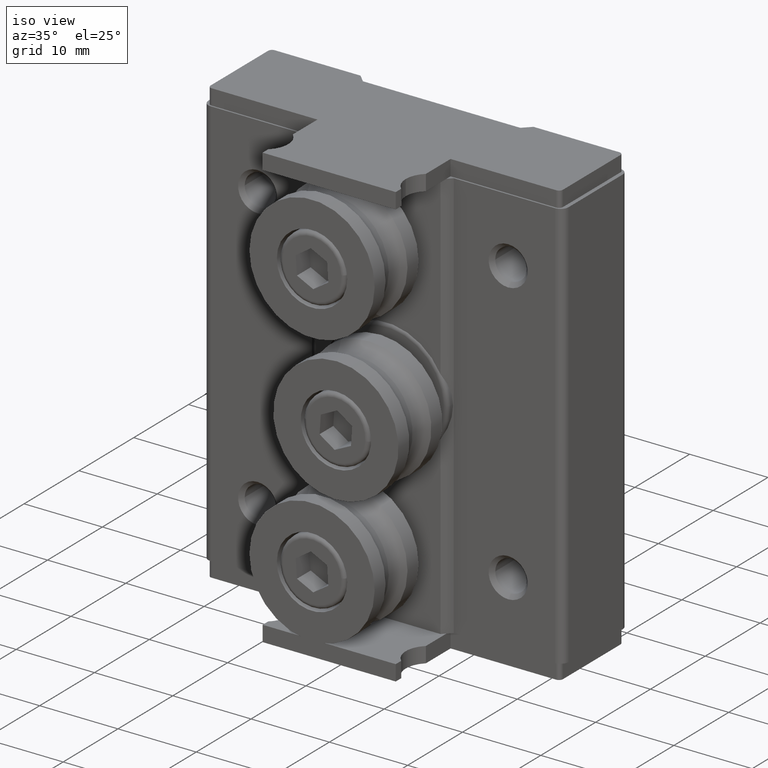
[diagram: clean part render]
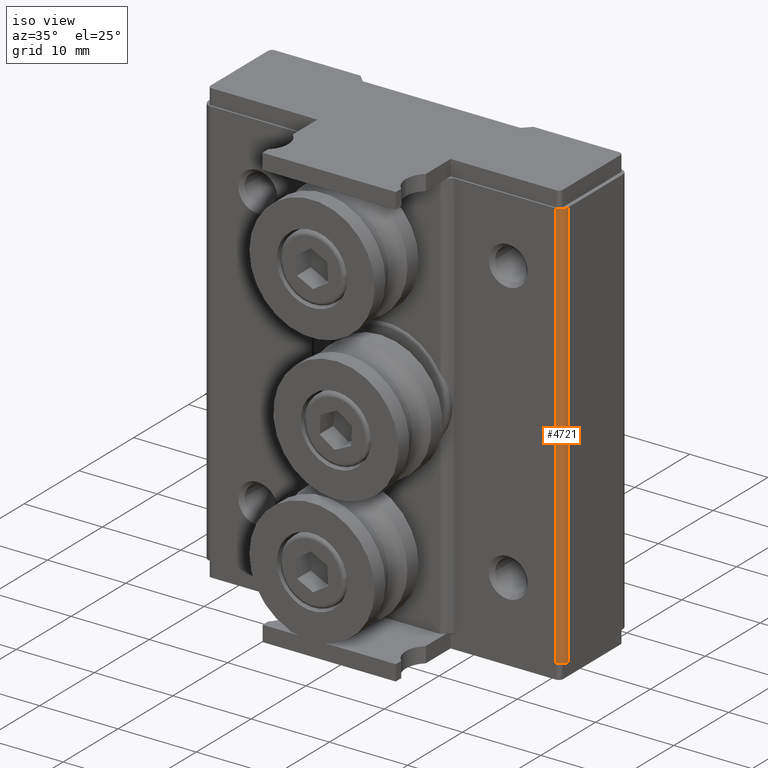
[diagram: same view with one face highlighted and labeled with its STEP entity id]
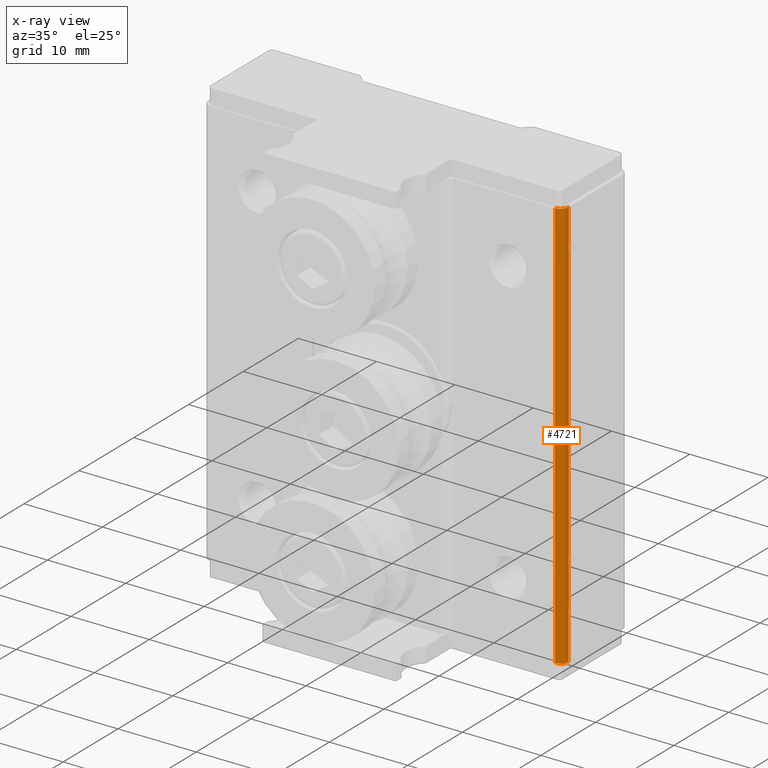
[diagram: x-ray of the same camera — body ghosted, the highlighted face saturated]
A machine part, iso view. The second image highlights one B-rep face of the part: STEP entity #4721.
The next image is the same camera in x-ray: the body ghosted, the highlighted face saturated — about 0% of this face is hidden behind the body in this view.
In plain terms, the highlighted cylindrical surface (edge-blend (fillet) strip) has radius 1 mm, axis along (0, 0, -1).
Its self-contained STEP definition (entity closure, byte-faithful):
#170 = CARTESIAN_POINT ( 'NONE',  ( 22.99999999999999645, -4.949999999999996625, 52.50000000000000000 ) ) ;
#216 = EDGE_CURVE ( 'NONE', #3215, #3529, #3309, .T. ) ;
#226 = DIRECTION ( 'NONE',  ( -0.000000000000000000, -0.000000000000000000, -1.000000000000000000 ) ) ;
#510 = VERTEX_POINT ( 'NONE', #605 ) ;
#512 = CARTESIAN_POINT ( 'NONE',  ( 21.99999999999999645, -4.949999999999996625, 52.50000000000000000 ) ) ;
#605 = CARTESIAN_POINT ( 'NONE',  ( 21.99999999999999645, -5.949999999999996625, 52.50000000000000000 ) ) ;
#784 = CIRCLE ( 'NONE', #938, 1.000000000000000888 ) ;
#916 = CARTESIAN_POINT ( 'NONE',  ( 21.99999999999999645, -4.949999999999996625, 0.000000000000000000 ) ) ;
#938 = AXIS2_PLACEMENT_3D ( 'NONE', #3273, #4691, #4747 ) ;
#960 = DIRECTION ( 'NONE',  ( -0.000000000000000000, -0.000000000000000000, 1.000000000000000000 ) ) ;
#1469 = ORIENTED_EDGE ( 'NONE', *, *, #3142, .F. ) ;
#1479 = ORIENTED_EDGE ( 'NONE', *, *, #2995, .F. ) ;
#1614 = DIRECTION ( 'NONE',  ( 0.000000000000000000, 0.000000000000000000, -1.000000000000000000 ) ) ;
#1726 = ORIENTED_EDGE ( 'NONE', *, *, #216, .F. ) ;
#1967 = CARTESIAN_POINT ( 'NONE',  ( 21.99999999999999645, -5.949999999999996625, 52.50000000000000000 ) ) ;
#2227 = CARTESIAN_POINT ( 'NONE',  ( 22.99999999999999645, -4.949999999999996625, 0.000000000000000000 ) ) ;
#2358 = FACE_OUTER_BOUND ( 'NONE', #2429, .T. ) ;
#2429 = EDGE_LOOP ( 'NONE', ( #1469, #1479, #1726, #3627 ) ) ;
#2444 = AXIS2_PLACEMENT_3D ( 'NONE', #916, #226, #3859 ) ;
#2995 = EDGE_CURVE ( 'NONE', #3529, #510, #4291, .T. ) ;
#3078 = CARTESIAN_POINT ( 'NONE',  ( 22.99999999999999645, -4.949999999999996625, 52.50000000000000000 ) ) ;
#3142 = EDGE_CURVE ( 'NONE', #510, #3410, #784, .T. ) ;
#3215 = VERTEX_POINT ( 'NONE', #2227 ) ;
#3273 = CARTESIAN_POINT ( 'NONE',  ( 21.99999999999999645, -4.949999999999996625, 52.50000000000000000 ) ) ;
#3309 = CIRCLE ( 'NONE', #2444, 1.000000000000000888 ) ;
#3410 = VERTEX_POINT ( 'NONE', #3078 ) ;
#3424 = VECTOR ( 'NONE', #960, 1000.000000000000000 ) ;
#3529 = VERTEX_POINT ( 'NONE', #3731 ) ;
#3627 = ORIENTED_EDGE ( 'NONE', *, *, #4679, .F. ) ;
#3727 = VECTOR ( 'NONE', #1614, 1000.000000000000000 ) ;
#3731 = CARTESIAN_POINT ( 'NONE',  ( 21.99999999999999645, -5.949999999999996625, 0.000000000000000000 ) ) ;
#3843 = CYLINDRICAL_SURFACE ( 'NONE', #4428, 1.000000000000000888 ) ;
#3859 = DIRECTION ( 'NONE',  ( 1.000000000000000000, 0.000000000000000000, 0.000000000000000000 ) ) ;
#3864 = DIRECTION ( 'NONE',  ( -1.000000000000000000, 0.000000000000000000, 0.000000000000000000 ) ) ;
#4180 = LINE ( 'NONE', #170, #3727 ) ;
#4226 = DIRECTION ( 'NONE',  ( 0.000000000000000000, 0.000000000000000000, -1.000000000000000000 ) ) ;
#4291 = LINE ( 'NONE', #1967, #3424 ) ;
#4428 = AXIS2_PLACEMENT_3D ( 'NONE', #512, #4226, #3864 ) ;
#4679 = EDGE_CURVE ( 'NONE', #3410, #3215, #4180, .T. ) ;
#4691 = DIRECTION ( 'NONE',  ( 0.000000000000000000, 0.000000000000000000, 1.000000000000000000 ) ) ;
#4721 = ADVANCED_FACE ( 'NONE', ( #2358 ), #3843, .T. ) ;
#4747 = DIRECTION ( 'NONE',  ( 1.000000000000000000, 0.000000000000000000, 0.000000000000000000 ) ) ;